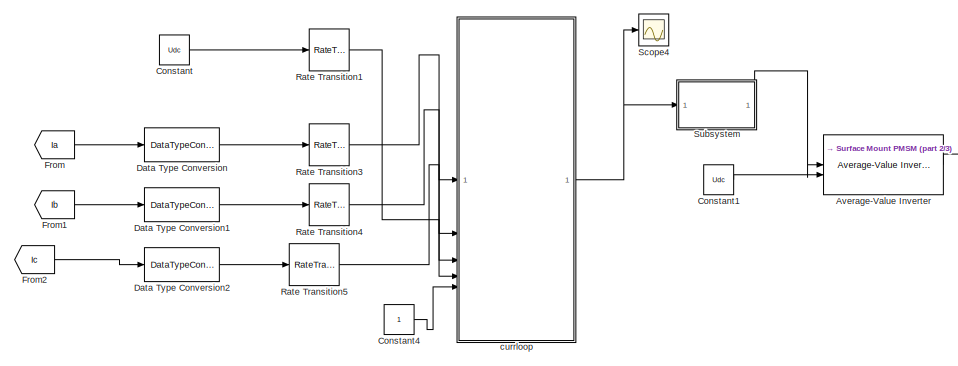
[diagram: root canvas - part 1/3, top left region]
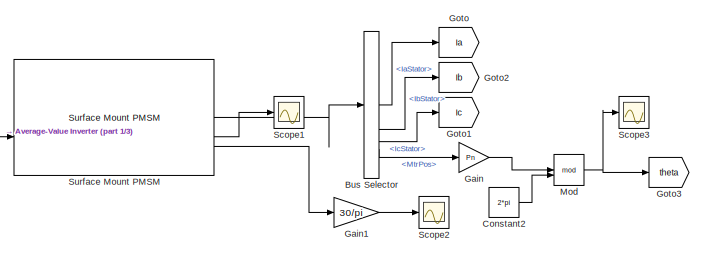
[diagram: root canvas - part 2/3, top right region]
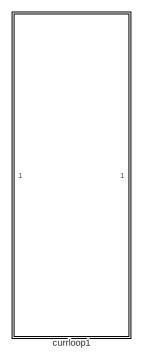
[diagram: root canvas - part 3/3, bottom center region]
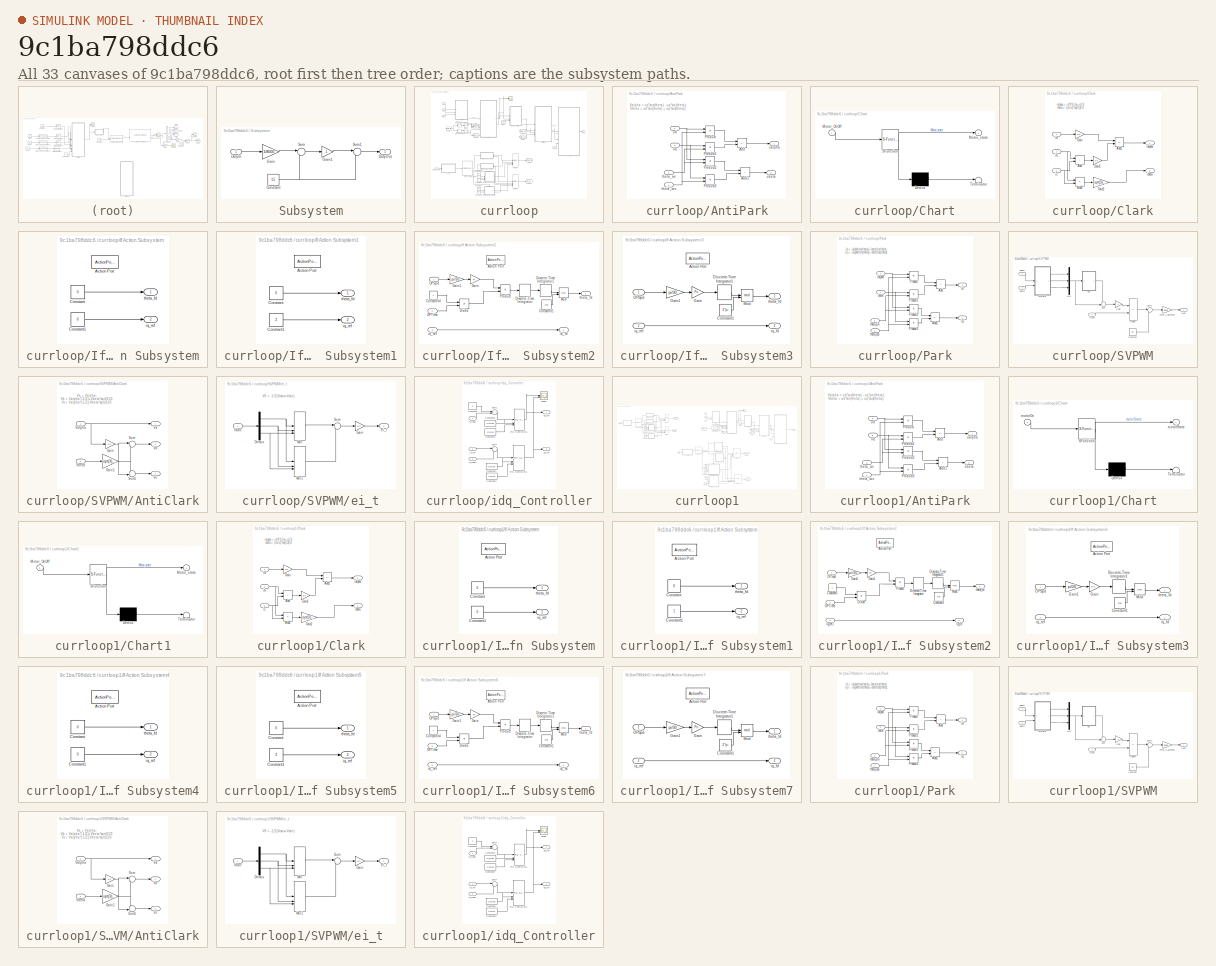
[diagram: thumbnail index - all 33 canvases of the model, root first then tree order]
MODEL slx_9c1ba798ddc6
KIND model
CONFIG AbsTol = auto
CONFIG EnableMultiTasking = off
CONFIG FixedStep = 1e-4
CONFIG MaxStep = auto
CONFIG MinStep = auto
CONFIG RelTol = 1e-3
CONFIG SampleTimeConstraint = Unconstrained
CONFIG SolverName = FixedStepAuto
CONFIG StartTime = 0.0
CONFIG StopTime = 10.0
BLOCK [Reference] Average-Value Inverter  REF=mcbplantlib/Average-Value Inverter
  LibrarySourceBlock = mcblib/Electrical Systems/Inverters/Average-Value Inverter
  SourceBlock = mcbplantlib/Average-Value Inverter
  SourceType = Average Value Inverter
BLOCK [BusSelector] Bus Selector
  OutputSignals = IaStator,IbStator,IcStator,MtrPos
BLOCK [Constant] Constant
  Value = Udc
BLOCK [Constant] Constant1
  Value = Udc
BLOCK [Constant] Constant2
  Value = 2*pi
BLOCK [Constant] Constant4
BLOCK [DataTypeConversion] Data Type Conversion
  OutDataTypeStr = single
  RndMeth = Floor
  SaturateOnIntegerOverflow = off
BLOCK [DataTypeConversion] Data Type Conversion1
  OutDataTypeStr = single
  RndMeth = Floor
  SaturateOnIntegerOverflow = off
BLOCK [DataTypeConversion] Data Type Conversion2
  OutDataTypeStr = single
  RndMeth = Floor
  SaturateOnIntegerOverflow = off
BLOCK [From] From
  GotoTag = Ia
BLOCK [From] From1
  GotoTag = Ib
BLOCK [From] From2
  GotoTag = Ic
BLOCK [Gain] Gain
  Gain = Pn
BLOCK [Gain] Gain1
  Gain = 30/pi
  OutDataTypeStr = single
BLOCK [Goto] Goto
  GotoTag = Ia
BLOCK [Goto] Goto1
  GotoTag = Ic
BLOCK [Goto] Goto2
  GotoTag = Ib
BLOCK [Goto] Goto3
  GotoTag = theta
BLOCK [Math] Mod
  Operator = mod
BLOCK [RateTransition] Rate Transition1
BLOCK [RateTransition] Rate Transition3
BLOCK [RateTransition] Rate Transition4
BLOCK [RateTransition] Rate Transition5
BLOCK [Scope] Scope1
  Floating = off
  NumInputPorts = 1
  ScopeSpecificationString = Simulink.scopes.TimeScopeBlockCfg('CurrentConfiguration', extmgr.ConfigurationSet(extmgr.Configuration('Core','General UI',true),extmgr.Configuration('Core','Source UI',true),extmgr.Configuration('Sources','WiredSimulink',true,'DataLoggingVariableName','ScopeData2'),extmgr.Configuration('Visuals','Time Domain',true,'SerializedDisplays',{struct('MinYLimReal','-4.25469','MaxYLimReal','5.71777','YLab...<+1528ch>
BLOCK [Scope] Scope2
  Floating = off
  NumInputPorts = 1
  ScopeSpecificationString = Simulink.scopes.TimeScopeBlockCfg('CurrentConfiguration', extmgr.ConfigurationSet(extmgr.Configuration('Core','General UI',true),extmgr.Configuration('Core','Source UI',true),extmgr.Configuration('Sources','WiredSimulink',true,'DataLoggingVariableName','ScopeData3'),extmgr.Configuration('Visuals','Time Domain',true,'SerializedDisplays',{struct('MinYLimReal','-216.11096','MaxYLimReal','1007.05358',...<+1438ch>
BLOCK [Scope] Scope3
  Floating = off
  NumInputPorts = 1
  ScopeSpecificationString = Simulink.scopes.TimeScopeBlockCfg('CurrentConfiguration', extmgr.ConfigurationSet(extmgr.Configuration('Core','General UI',true),extmgr.Configuration('Core','Source UI',true),extmgr.Configuration('Sources','WiredSimulink',true),extmgr.Configuration('Visuals','Time Domain',true,'SerializedDisplays',{struct('MinYLimReal','-34.3032','MaxYLimReal','40.01647','YLabelReal','','MinYLimMag','0.00000','Max...<+1373ch>
BLOCK [Scope] Scope4
  Floating = off
  NumInputPorts = 1
  ScopeSpecificationString = Simulink.scopes.TimeScopeBlockCfg('CurrentConfiguration', extmgr.ConfigurationSet(extmgr.Configuration('Core','General UI',true),extmgr.Configuration('Core','Source UI',true),extmgr.Configuration('Sources','WiredSimulink',true,'DataLoggingVariableName','ScopeData1'),extmgr.Configuration('Visuals','Time Domain',true,'SerializedDisplays',{struct('MinYLimReal','-2363.96118','MaxYLimReal','10363.96118...<+1520ch>
BLOCK [SubSystem] Subsystem
  PortSchema = {"entries":[{"content":{"sides":[{"content":{"connectorIds":["In1"]},"type":"ConnectorPlacement.EquallySpacedRectSide","uuid":"8ccc51de-fa2a-4900-80a3-4cdf9aa76f01"},{"content":{"side":"RIGHT"},"type":"ConnectorPlacement.EquallySpacedRectSide","uuid":"32c06e0d-3f1d-4948-af96-e310e54308a0"},{"content":{"connectorIds":["Out1"],"side":"TOP"},"type":"ConnectorPlacement.EquallySpacedRectSide","uuid":"a...<+222ch>
BLOCK [Constant] Subsystem/Constant
  SampleTime = -1
  Value = 0.5
BLOCK [Inport] Subsystem/DutyIn
BLOCK [Outport] Subsystem/DutyOut
BLOCK [Gain] Subsystem/Gain
  Gain = 1/8000
  ParamDataTypeStr = single
BLOCK [Gain] Subsystem/Gain1
  Gain = -1
BLOCK [Sum] Subsystem/Sum
  Inputs = |+-
BLOCK [Sum] Subsystem/Sum1
  Inputs = |++
BLOCK [Reference] Surface Mount PMSM  REF=autolibpmsmexterior/Surface Mount PMSM
  LibrarySourceBlock = autolibemachines/Surface Mount PMSM
  SourceBlock = autolibpmsmexterior/Surface Mount PMSM
  SourceType = Surface Mount PMSM
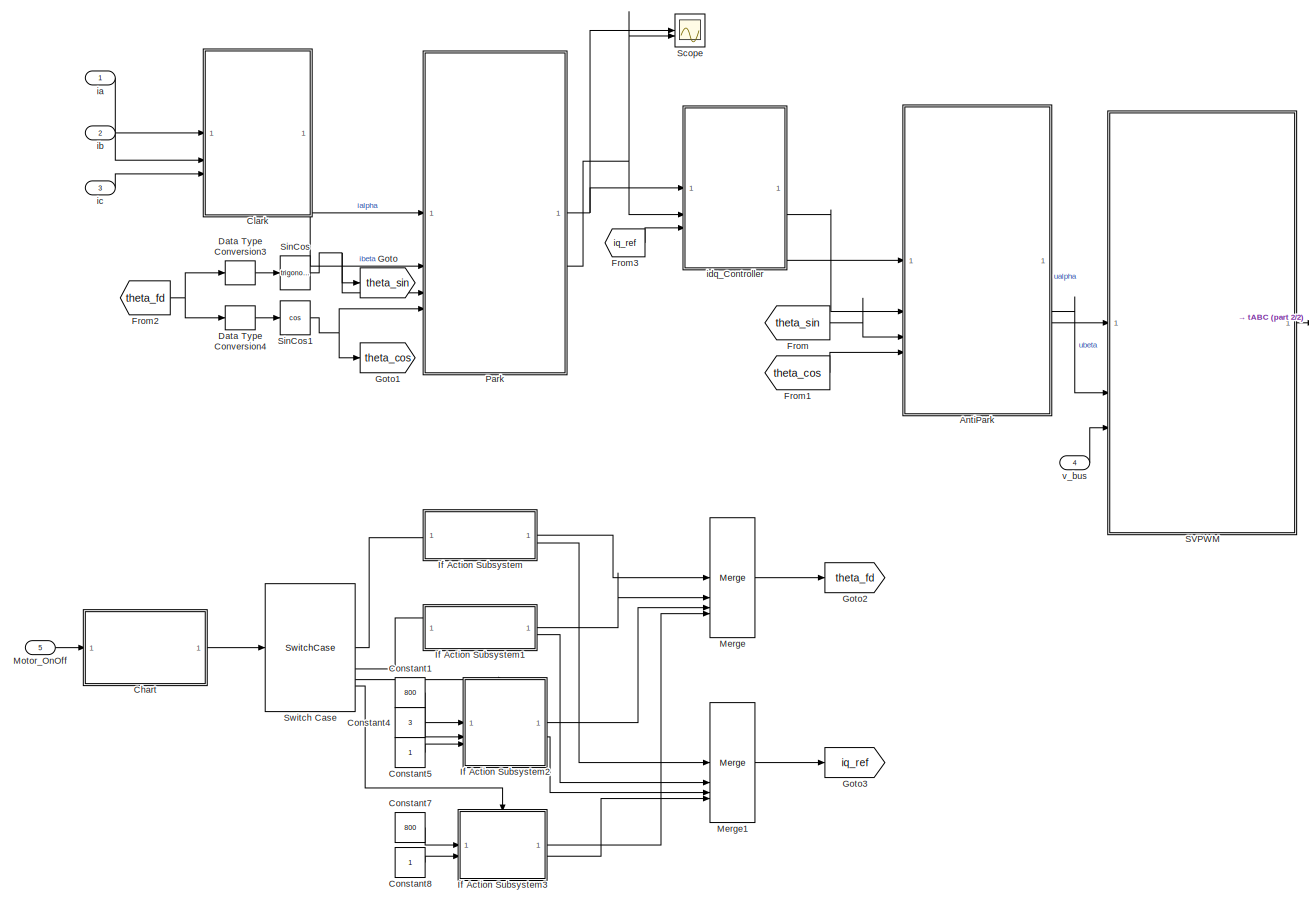
[diagram: currloop - part 1/2, most of the canvas]
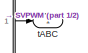
[diagram: currloop - part 2/2, middle right region]
BLOCK [SubSystem] currloop
BLOCK [SubSystem] currloop/AntiPark
BLOCK [Sum] currloop/AntiPark/Add
  IconShape = rectangular
  Inputs = +-
BLOCK [Sum] currloop/AntiPark/Add1
  IconShape = rectangular
BLOCK [Product] currloop/AntiPark/Product
BLOCK [Product] currloop/AntiPark/Product1
BLOCK [Product] currloop/AntiPark/Product2
BLOCK [Product] currloop/AntiPark/Product3
BLOCK [Inport] currloop/AntiPark/theta_cos
  Port = 4
BLOCK [Inport] currloop/AntiPark/theta_sin
  Port = 3
BLOCK [Outport] currloop/AntiPark/ualpha
  OutDataTypeStr = single
BLOCK [Outport] currloop/AntiPark/ubeta
  OutDataTypeStr = single
  Port = 2
BLOCK [Inport] currloop/AntiPark/ud
BLOCK [Inport] currloop/AntiPark/uq
  Port = 2
BLOCK [SubSystem] currloop/Chart
  ErrorFcn = Stateflow.Translate.translate
  PermitHierarchicalResolution = ExplicitOnly
  SFBlockType = Chart
  TreatAsAtomicUnit = on
BLOCK [Demux] currloop/Chart/ Demux 
  Outputs = 1
BLOCK [S-Function] currloop/Chart/ SFunction 
  EnableBusSupport = on
  FunctionName = sf_sfun
  PortCounts = [1 2]
  SFcnIsStateOwnerBlock = off
  SFunctionDeploymentMode = off
  Tag = Stateflow S-Function 3
BLOCK [Terminator] currloop/Chart/ Terminator 
BLOCK [Inport] currloop/Chart/Motor_OnOff
BLOCK [Outport] currloop/Chart/Motor_state
BLOCK [SubSystem] currloop/Clark
BLOCK [Sum] currloop/Clark/Add
  AccumDataTypeStr = single
  IconShape = rectangular
  OutDataTypeStr = single
BLOCK [Sum] currloop/Clark/Add1
  AccumDataTypeStr = single
  IconShape = rectangular
  Inputs = +-
  OutDataTypeStr = single
BLOCK [Sum] currloop/Clark/Add2
  AccumDataTypeStr = single
  IconShape = rectangular
  Inputs = +-
  OutDataTypeStr = single
BLOCK [Gain] currloop/Clark/Gain
  Gain = 2/3
  ParamDataTypeStr = single
BLOCK [Gain] currloop/Clark/Gain1
  Gain = 1/3
  ParamDataTypeStr = single
BLOCK [Gain] currloop/Clark/Gain2
  Gain = sqrt(3)/3
  ParamDataTypeStr = single
BLOCK [Inport] currloop/Clark/ia
  OutDataTypeStr = single
BLOCK [Outport] currloop/Clark/ialpha
  OutDataTypeStr = single
BLOCK [Inport] currloop/Clark/ib
  OutDataTypeStr = single
  Port = 2
BLOCK [Outport] currloop/Clark/ibeta
  OutDataTypeStr = single
  Port = 2
BLOCK [Inport] currloop/Clark/ic
  OutDataTypeStr = single
  Port = 3
BLOCK [Constant] currloop/Constant1
  OutDataTypeStr = single
  Value = 800
BLOCK [Constant] currloop/Constant4
  OutDataTypeStr = single
  Value = 3
BLOCK [Constant] currloop/Constant5
  OutDataTypeStr = single
BLOCK [Constant] currloop/Constant7
  OutDataTypeStr = single
  Value = 800
BLOCK [Constant] currloop/Constant8
  OutDataTypeStr = single
BLOCK [DataTypeConversion] currloop/Data Type Conversion3
  OutDataTypeStr = single
  RndMeth = Floor
  SaturateOnIntegerOverflow = off
BLOCK [DataTypeConversion] currloop/Data Type Conversion4
  OutDataTypeStr = single
  RndMeth = Floor
  SaturateOnIntegerOverflow = off
BLOCK [From] currloop/From
  GotoTag = theta_sin
BLOCK [From] currloop/From1
  GotoTag = theta_cos
BLOCK [From] currloop/From2
  GotoTag = theta_fd
BLOCK [From] currloop/From3
  GotoTag = iq_ref
BLOCK [Goto] currloop/Goto
  GotoTag = theta_sin
BLOCK [Goto] currloop/Goto1
  GotoTag = theta_cos
BLOCK [Goto] currloop/Goto2
  GotoTag = theta_fd
BLOCK [Goto] currloop/Goto3
  GotoTag = iq_ref
BLOCK [SubSystem] currloop/If Action Subsystem
  TreatAsAtomicUnit = on
BLOCK [ActionPort] currloop/If Action Subsystem/Action Port
  ActionPortLabel = case [ 1 ]:
BLOCK [Constant] currloop/If Action Subsystem/Constant
  OutDataTypeStr = single
  Value = 0
BLOCK [Constant] currloop/If Action Subsystem/Constant1
  OutDataTypeStr = single
  Value = 0
BLOCK [Outport] currloop/If Action Subsystem/iq_ref
  Port = 2
BLOCK [Outport] currloop/If Action Subsystem/theta_fd
BLOCK [SubSystem] currloop/If Action Subsystem1
  TreatAsAtomicUnit = on
BLOCK [ActionPort] currloop/If Action Subsystem1/Action Port
  ActionPortLabel = case [ 2 ]:
BLOCK [Constant] currloop/If Action Subsystem1/Constant
  OutDataTypeStr = single
  Value = 0
BLOCK [Constant] currloop/If Action Subsystem1/Constant1
  OutDataTypeStr = single
  Value = 2
BLOCK [Outport] currloop/If Action Subsystem1/iq_ref
  Port = 2
BLOCK [Outport] currloop/If Action Subsystem1/theta_fd
BLOCK [SubSystem] currloop/If Action Subsystem2
  TreatAsAtomicUnit = on
BLOCK [ActionPort] currloop/If Action Subsystem2/Action Port
  ActionPortLabel = case [ 3 ]:
BLOCK [Constant] currloop/If Action Subsystem2/Constant1
  OutDataTypeStr = single
  Value = 2*pi
BLOCK [Constant] currloop/If Action Subsystem2/Constant4
  OutDataTypeStr = single
BLOCK [DiscreteIntegrator] currloop/If Action Subsystem2/Discrete-Time Integrator
  ICPrevOutput = DiscIntNeverNeededParam
  ICPrevScaledInput = DiscIntNeverNeededParam
  InitialConditionSetting = Auto
  SampleTime = -1
BLOCK [DiscreteIntegrator] currloop/If Action Subsystem2/Discrete-Time Integrator1
  ICPrevOutput = DiscIntNeverNeededParam
  ICPrevScaledInput = DiscIntNeverNeededParam
  InitialConditionSetting = Auto
  SampleTime = -1
BLOCK [Product] currloop/If Action Subsystem2/Divide
  Inputs = */
  OutDataTypeStr = single
BLOCK [Gain] currloop/If Action Subsystem2/Gain
  Gain = Pn
BLOCK [Gain] currloop/If Action Subsystem2/Gain1
  Gain = pi/30
  OutDataTypeStr = single
BLOCK [Math] currloop/If Action Subsystem2/Mod
  Operator = mod
BLOCK [Inport] currloop/If Action Subsystem2/OPSpd
  OutDataTypeStr = single
  PortDimensions = 1
  SignalType = real
  VarSizeSig = No
BLOCK [Inport] currloop/If Action Subsystem2/OPTime
  OutDataTypeStr = single
  Port = 2
  PortDimensions = 1
  SignalType = real
  VarSizeSig = No
BLOCK [Product] currloop/If Action Subsystem2/Product
  OutDataTypeStr = single
BLOCK [Outport] currloop/If Action Subsystem2/iq_fd
  Port = 2
BLOCK [Inport] currloop/If Action Subsystem2/iq_ref
  Port = 3
BLOCK [Outport] currloop/If Action Subsystem2/theta_fd
BLOCK [SubSystem] currloop/If Action Subsystem3
  TreatAsAtomicUnit = on
BLOCK [ActionPort] currloop/If Action Subsystem3/Action Port
  ActionPortLabel = case [ 4 ]:
BLOCK [Constant] currloop/If Action Subsystem3/Constant1
  OutDataTypeStr = single
  Value = 2*pi
BLOCK [DiscreteIntegrator] currloop/If Action Subsystem3/Discrete-Time Integrator1
  ICPrevOutput = DiscIntNeverNeededParam
  ICPrevScaledInput = DiscIntNeverNeededParam
  InitialConditionSetting = Auto
  SampleTime = -1
BLOCK [Gain] currloop/If Action Subsystem3/Gain
  Gain = Pn
BLOCK [Gain] currloop/If Action Subsystem3/Gain1
  Gain = pi/30
  OutDataTypeStr = single
BLOCK [Math] currloop/If Action Subsystem3/Mod
  Operator = mod
BLOCK [Inport] currloop/If Action Subsystem3/OPSpd
  OutDataTypeStr = single
  PortDimensions = 1
  SignalType = real
  VarSizeSig = No
BLOCK [Outport] currloop/If Action Subsystem3/iq_fd
  Port = 2
BLOCK [Inport] currloop/If Action Subsystem3/iq_ref
  Port = 2
BLOCK [Outport] currloop/If Action Subsystem3/theta_fd
BLOCK [Merge] currloop/Merge
  Inputs = 4
BLOCK [Merge] currloop/Merge1
  Inputs = 4
BLOCK [Inport] currloop/Motor_OnOff
  Port = 5
BLOCK [SubSystem] currloop/Park
BLOCK [Sum] currloop/Park/Add
  AccumDataTypeStr = single
  IconShape = rectangular
  OutDataTypeStr = single
BLOCK [Sum] currloop/Park/Add1
  AccumDataTypeStr = single
  IconShape = rectangular
  Inputs = -+
  OutDataTypeStr = single
BLOCK [Product] currloop/Park/Product
  OutDataTypeStr = single
BLOCK [Product] currloop/Park/Product1
  OutDataTypeStr = single
BLOCK [Product] currloop/Park/Product2
  OutDataTypeStr = single
BLOCK [Product] currloop/Park/Product3
  OutDataTypeStr = single
BLOCK [Inport] currloop/Park/ialpha
  OutDataTypeStr = single
BLOCK [Inport] currloop/Park/ibeta
  OutDataTypeStr = single
  Port = 2
BLOCK [Outport] currloop/Park/id
  OutDataTypeStr = single
BLOCK [Outport] currloop/Park/iq
  OutDataTypeStr = single
  Port = 2
BLOCK [Inport] currloop/Park/theta_cos
  OutDataTypeStr = single
  Port = 4
BLOCK [Inport] currloop/Park/theta_sin
  OutDataTypeStr = single
  Port = 3
BLOCK [SubSystem] currloop/SVPWM
  RTWSystemCode = Reusable function
  TreatAsAtomicUnit = on
BLOCK [SubSystem] currloop/SVPWM/AntiClark
BLOCK [Gain] currloop/SVPWM/AntiClark/Gain
  Gain = -1/2
  OutDataTypeStr = single
BLOCK [Gain] currloop/SVPWM/AntiClark/Gain1
  Gain = sqrt(3)/2
  OutDataTypeStr = single
BLOCK [Sum] currloop/SVPWM/AntiClark/Sum
  Inputs = |++
  OutDataTypeStr = single
BLOCK [Sum] currloop/SVPWM/AntiClark/Sum1
  Inputs = -+|
  OutDataTypeStr = single
BLOCK [Outport] currloop/SVPWM/AntiClark/Va
  OutDataTypeStr = single
BLOCK [Inport] currloop/SVPWM/AntiClark/Valpha
  OutDataTypeStr = single
BLOCK [Outport] currloop/SVPWM/AntiClark/Vb
  OutDataTypeStr = single
  Port = 2
BLOCK [Inport] currloop/SVPWM/AntiClark/Vbeta
  OutDataTypeStr = single
  Port = 2
BLOCK [Outport] currloop/SVPWM/AntiClark/Vc
  OutDataTypeStr = single
  Port = 3
BLOCK [Constant] currloop/SVPWM/Constant
  OutDataTypeStr = single
  Value = 0.5
BLOCK [Product] currloop/SVPWM/Divide
  Inputs = */
  OutDataTypeStr = single
BLOCK [Gain] currloop/SVPWM/Gain
  Gain = -1
  OutDataTypeStr = single
BLOCK [Mux] currloop/SVPWM/Mux
  DisplayOption = bar
  Inputs = 3
BLOCK [Gain] currloop/SVPWM/PWM_HalfPeriod
  Gain = 8000
  OutDataTypeStr = single
BLOCK [Sum] currloop/SVPWM/Sum
  Inputs = ++|
  OutDataTypeStr = single
BLOCK [Sum] currloop/SVPWM/Sum1
  Inputs = |++
  OutDataTypeStr = single
BLOCK [Inport] currloop/SVPWM/Valpha
  OutDataTypeStr = single
BLOCK [Inport] currloop/SVPWM/Vbeta
  OutDataTypeStr = single
  Port = 2
BLOCK [SubSystem] currloop/SVPWM/ei_t
BLOCK [Demux] currloop/SVPWM/ei_t/Demux
  Outputs = 3
BLOCK [Gain] currloop/SVPWM/ei_t/Gain
  Gain = -1/2
  OutDataTypeStr = single
BLOCK [MinMax] currloop/SVPWM/ei_t/Min
  Inputs = 3
  OutDataTypeStr = single
BLOCK [MinMax] currloop/SVPWM/ei_t/Min1
  Function = max
  Inputs = 3
  OutDataTypeStr = single
BLOCK [Sum] currloop/SVPWM/ei_t/Sum
  Inputs = |++
  OutDataTypeStr = single
BLOCK [Inport] currloop/SVPWM/ei_t/Vabc
  OutDataTypeStr = single
BLOCK [Outport] currloop/SVPWM/ei_t/ei_t
  OutDataTypeStr = single
BLOCK [Outport] currloop/SVPWM/tABC
  OutDataTypeStr = single
BLOCK [Inport] currloop/SVPWM/v_bus
  OutDataTypeStr = single
  Port = 3
BLOCK [Scope] currloop/Scope
  Floating = off
  NumInputPorts = 2
  ScopeSpecificationString = Simulink.scopes.TimeScopeBlockCfg('CurrentConfiguration', extmgr.ConfigurationSet(extmgr.Configuration('Core','General UI',true),extmgr.Configuration('Core','Source UI',true),extmgr.Configuration('Sources','WiredSimulink',true,'DataLoggingVariableName','ScopeData1'),extmgr.Configuration('Visuals','Time Domain',true,'SerializedDisplays',{struct('MinYLimReal','-1.52617','MaxYLimReal','2.37444','YLab...<+1399ch>
BLOCK [Trigonometry] currloop/SinCos
BLOCK [Trigonometry] currloop/SinCos1
  Operator = cos
BLOCK [SwitchCase] currloop/Switch Case
  CaseConditions = {1,2,3,4}
  ShowDefaultCase = off
BLOCK [Inport] currloop/ia
BLOCK [Inport] currloop/ib
  Port = 2
BLOCK [Inport] currloop/ic
  Port = 3
BLOCK [SubSystem] currloop/idq_Controller
BLOCK [Constant] currloop/idq_Controller/Constant
  OutDataTypeStr = single
  Value = 0
BLOCK [Constant] currloop/idq_Controller/Constant1
  OutDataTypeStr = single
  Value = CurrKp
BLOCK [Constant] currloop/idq_Controller/Constant2
  OutDataTypeStr = single
  Value = CurrKi
BLOCK [Constant] currloop/idq_Controller/Constant3
  OutDataTypeStr = single
  Value = CurrKp
BLOCK [Constant] currloop/idq_Controller/Constant4
  OutDataTypeStr = single
  Value = CurrKi
BLOCK [Reference] currloop/idq_Controller/PID Controller1  REF=slpidlib/PID Controller
  SourceBlock = slpidlib/PID Controller
  SourceType = PID 1dof
BLOCK [Reference] currloop/idq_Controller/PID Controller2  REF=slpidlib/PID Controller
  SourceBlock = slpidlib/PID Controller
  SourceType = PID 1dof
BLOCK [Scope] currloop/idq_Controller/Scope
  Floating = off
  NumInputPorts = 2
  ScopeSpecificationString = Simulink.scopes.TimeScopeBlockCfg('CurrentConfiguration', extmgr.ConfigurationSet(extmgr.Configuration('Core','General UI',true),extmgr.Configuration('Core','Source UI',true),extmgr.Configuration('Sources','WiredSimulink',true,'DataLoggingVariableName','ScopeData2'),extmgr.Configuration('Visuals','Time Domain',true,'SerializedDisplays',{struct('MinYLimReal','-5.23788','MaxYLimReal','14.43839','YLa...<+1450ch>
BLOCK [Sum] currloop/idq_Controller/Sum1
  AccumDataTypeStr = single
  Inputs = |+-
  OutDataTypeStr = single
BLOCK [Sum] currloop/idq_Controller/Sum7
  AccumDataTypeStr = single
  Inputs = |+-
  OutDataTypeStr = single
BLOCK [Inport] currloop/idq_Controller/id_fdbk
  OutDataTypeStr = single
BLOCK [Inport] currloop/idq_Controller/iq_fdbk
  OutDataTypeStr = single
  Port = 2
BLOCK [Inport] currloop/idq_Controller/iq_ref
  OutDataTypeStr = single
  Port = 3
BLOCK [Outport] currloop/idq_Controller/ud_ref
  OutDataTypeStr = single
BLOCK [Outport] currloop/idq_Controller/uq_ref
  OutDataTypeStr = single
  Port = 2
BLOCK [Outport] currloop/tABC
BLOCK [Inport] currloop/v_bus
  Port = 4
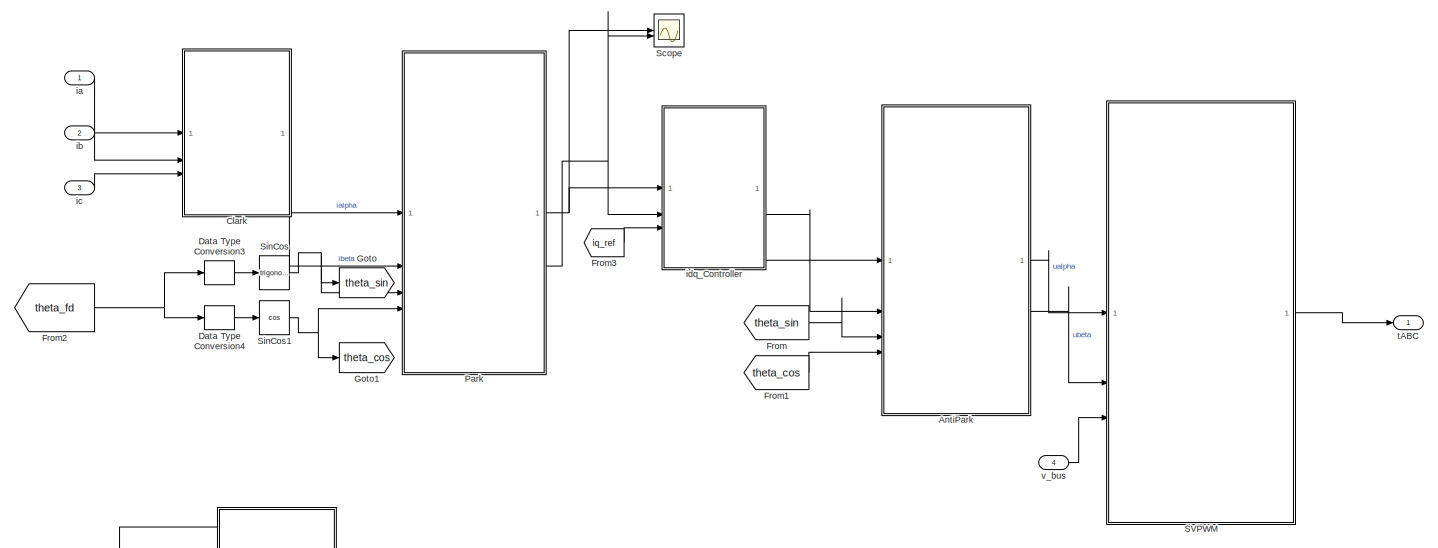
[diagram: currloop1 - part 1/3, top right region]
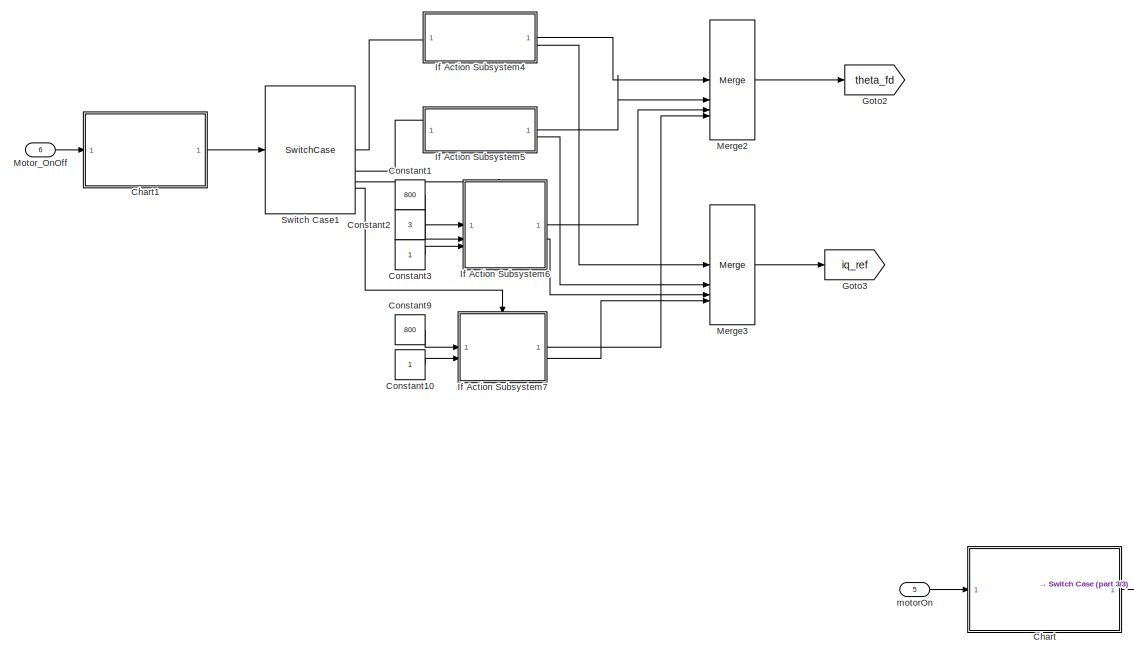
[diagram: currloop1 - part 2/3, middle left region]
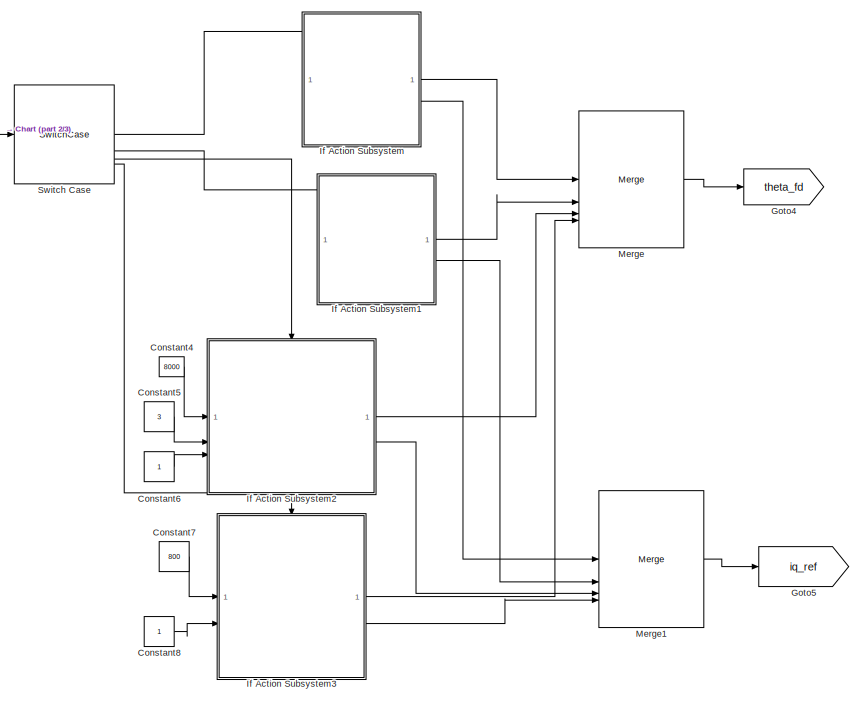
[diagram: currloop1 - part 3/3, bottom center region]
BLOCK [SubSystem] currloop1
BLOCK [SubSystem] currloop1/AntiPark
BLOCK [Sum] currloop1/AntiPark/Add
  IconShape = rectangular
  Inputs = +-
BLOCK [Sum] currloop1/AntiPark/Add1
  IconShape = rectangular
BLOCK [Product] currloop1/AntiPark/Product
BLOCK [Product] currloop1/AntiPark/Product1
BLOCK [Product] currloop1/AntiPark/Product2
BLOCK [Product] currloop1/AntiPark/Product3
BLOCK [Inport] currloop1/AntiPark/theta_cos
  Port = 4
BLOCK [Inport] currloop1/AntiPark/theta_sin
  Port = 3
BLOCK [Outport] currloop1/AntiPark/ualpha
  OutDataTypeStr = single
BLOCK [Outport] currloop1/AntiPark/ubeta
  OutDataTypeStr = single
  Port = 2
BLOCK [Inport] currloop1/AntiPark/ud
BLOCK [Inport] currloop1/AntiPark/uq
  Port = 2
BLOCK [SubSystem] currloop1/Chart
  Commented = on
  ErrorFcn = Stateflow.Translate.translate
  PermitHierarchicalResolution = ExplicitOnly
  SFBlockType = Chart
  TreatAsAtomicUnit = on
BLOCK [Demux] currloop1/Chart/ Demux 
  Outputs = 1
BLOCK [S-Function] currloop1/Chart/ SFunction 
  EnableBusSupport = on
  FunctionName = sf_sfun
  PortCounts = [1 2]
  SFcnIsStateOwnerBlock = off
  SFunctionDeploymentMode = off
  Tag = Stateflow S-Function 2
BLOCK [Terminator] currloop1/Chart/ Terminator 
BLOCK [Inport] currloop1/Chart/motorOn
BLOCK [Outport] currloop1/Chart/motorState
BLOCK [SubSystem] currloop1/Chart1
  ErrorFcn = Stateflow.Translate.translate
  PermitHierarchicalResolution = ExplicitOnly
  SFBlockType = Chart
  TreatAsAtomicUnit = on
BLOCK [Demux] currloop1/Chart1/ Demux 
  Outputs = 1
BLOCK [S-Function] currloop1/Chart1/ SFunction 
  EnableBusSupport = on
  FunctionName = sf_sfun
  PortCounts = [1 2]
  SFcnIsStateOwnerBlock = off
  SFunctionDeploymentMode = off
  Tag = Stateflow S-Function 4
BLOCK [Terminator] currloop1/Chart1/ Terminator 
BLOCK [Inport] currloop1/Chart1/Motor_OnOff
BLOCK [Outport] currloop1/Chart1/Motor_state
BLOCK [SubSystem] currloop1/Clark
BLOCK [Sum] currloop1/Clark/Add
  AccumDataTypeStr = single
  IconShape = rectangular
  OutDataTypeStr = single
BLOCK [Sum] currloop1/Clark/Add1
  AccumDataTypeStr = single
  IconShape = rectangular
  Inputs = +-
  OutDataTypeStr = single
BLOCK [Sum] currloop1/Clark/Add2
  AccumDataTypeStr = single
  IconShape = rectangular
  Inputs = +-
  OutDataTypeStr = single
BLOCK [Gain] currloop1/Clark/Gain
  Gain = 2/3
  ParamDataTypeStr = single
BLOCK [Gain] currloop1/Clark/Gain1
  Gain = 1/3
  ParamDataTypeStr = single
BLOCK [Gain] currloop1/Clark/Gain2
  Gain = sqrt(3)/3
  ParamDataTypeStr = single
BLOCK [Inport] currloop1/Clark/ia
  OutDataTypeStr = single
BLOCK [Outport] currloop1/Clark/ialpha
  OutDataTypeStr = single
BLOCK [Inport] currloop1/Clark/ib
  OutDataTypeStr = single
  Port = 2
BLOCK [Outport] currloop1/Clark/ibeta
  OutDataTypeStr = single
  Port = 2
BLOCK [Inport] currloop1/Clark/ic
  OutDataTypeStr = single
  Port = 3
BLOCK [Constant] currloop1/Constant1
  OutDataTypeStr = single
  Value = 800
BLOCK [Constant] currloop1/Constant10
  OutDataTypeStr = single
BLOCK [Constant] currloop1/Constant2
  OutDataTypeStr = single
  Value = 3
BLOCK [Constant] currloop1/Constant3
  OutDataTypeStr = single
BLOCK [Constant] currloop1/Constant4
  Commented = on
  OutDataTypeStr = single
  Value = 8000
BLOCK [Constant] currloop1/Constant5
  Commented = on
  OutDataTypeStr = single
  Value = 3
BLOCK [Constant] currloop1/Constant6
  Commented = on
  OutDataTypeStr = single
BLOCK [Constant] currloop1/Constant7
  Commented = on
  OutDataTypeStr = single
  Value = 800
BLOCK [Constant] currloop1/Constant8
  Commented = on
  OutDataTypeStr = single
BLOCK [Constant] currloop1/Constant9
  OutDataTypeStr = single
  Value = 800
BLOCK [DataTypeConversion] currloop1/Data Type Conversion3
  OutDataTypeStr = single
  RndMeth = Floor
  SaturateOnIntegerOverflow = off
BLOCK [DataTypeConversion] currloop1/Data Type Conversion4
  OutDataTypeStr = single
  RndMeth = Floor
  SaturateOnIntegerOverflow = off
BLOCK [From] currloop1/From
  GotoTag = theta_sin
BLOCK [From] currloop1/From1
  GotoTag = theta_cos
BLOCK [From] currloop1/From2
  GotoTag = theta_fd
BLOCK [From] currloop1/From3
  GotoTag = iq_ref
BLOCK [Goto] currloop1/Goto
  GotoTag = theta_sin
BLOCK [Goto] currloop1/Goto1
  GotoTag = theta_cos
BLOCK [Goto] currloop1/Goto2
  GotoTag = theta_fd
BLOCK [Goto] currloop1/Goto3
  GotoTag = iq_ref
BLOCK [Goto] currloop1/Goto4
  Commented = on
  GotoTag = theta_fd
BLOCK [Goto] currloop1/Goto5
  Commented = on
  GotoTag = iq_ref
BLOCK [SubSystem] currloop1/If Action Subsystem
  Commented = on
  TreatAsAtomicUnit = on
BLOCK [ActionPort] currloop1/If Action Subsystem/Action Port
BLOCK [Constant] currloop1/If Action Subsystem/Constant
  OutDataTypeStr = single
  Value = 0
BLOCK [Constant] currloop1/If Action Subsystem/Constant1
  OutDataTypeStr = single
  Value = 0
BLOCK [Outport] currloop1/If Action Subsystem/iq_ref
  Port = 2
BLOCK [Outport] currloop1/If Action Subsystem/theta_fd
BLOCK [SubSystem] currloop1/If Action Subsystem1
  Commented = on
  TreatAsAtomicUnit = on
BLOCK [ActionPort] currloop1/If Action Subsystem1/Action Port
BLOCK [Constant] currloop1/If Action Subsystem1/Constant
  OutDataTypeStr = single
  Value = 0
BLOCK [Constant] currloop1/If Action Subsystem1/Constant1
  OutDataTypeStr = single
BLOCK [Outport] currloop1/If Action Subsystem1/iq_ref
  Port = 2
BLOCK [Outport] currloop1/If Action Subsystem1/theta_fd
BLOCK [SubSystem] currloop1/If Action Subsystem2
  Commented = on
  TreatAsAtomicUnit = on
BLOCK [ActionPort] currloop1/If Action Subsystem2/Action Port
BLOCK [Constant] currloop1/If Action Subsystem2/Constant4
  OutDataTypeStr = single
  Value = 2*pi
BLOCK [Constant] currloop1/If Action Subsystem2/Constant5
  OutDataTypeStr = single
BLOCK [DiscreteIntegrator] currloop1/If Action Subsystem2/Discrete-Time Integrator
  ICPrevOutput = DiscIntNeverNeededParam
  ICPrevScaledInput = DiscIntNeverNeededParam
  InitialConditionSetting = Auto
  SampleTime = -1
BLOCK [DiscreteIntegrator] currloop1/If Action Subsystem2/Discrete-Time Integrator1
  ICPrevOutput = DiscIntNeverNeededParam
  ICPrevScaledInput = DiscIntNeverNeededParam
  InitialConditionSetting = Auto
  SampleTime = -1
BLOCK [Product] currloop1/If Action Subsystem2/Divide
  Inputs = */
  OutDataTypeStr = single
BLOCK [Gain] currloop1/If Action Subsystem2/Gain1
  Gain = Pn
BLOCK [Gain] currloop1/If Action Subsystem2/Gain2
  Gain = pi/30
  OutDataTypeStr = single
BLOCK [Math] currloop1/If Action Subsystem2/Mod1
  Operator = mod
BLOCK [Inport] currloop1/If Action Subsystem2/OPSpd
  OutDataTypeStr = single
  PortDimensions = 1
  SignalType = real
  VarSizeSig = No
BLOCK [Inport] currloop1/If Action Subsystem2/OPTime
  OutDataTypeStr = single
  Port = 2
  PortDimensions = 1
  SignalType = real
  VarSizeSig = No
BLOCK [Product] currloop1/If Action Subsystem2/Product
  OutDataTypeStr = single
BLOCK [Outport] currloop1/If Action Subsystem2/iq_fd
  Port = 2
BLOCK [Inport] currloop1/If Action Subsystem2/iq_ref1
  Port = 3
BLOCK [Outport] currloop1/If Action Subsystem2/theta_fd
BLOCK [SubSystem] currloop1/If Action Subsystem3
  Commented = on
  TreatAsAtomicUnit = on
BLOCK [ActionPort] currloop1/If Action Subsystem3/Action Port
BLOCK [Constant] currloop1/If Action Subsystem3/Constant1
  OutDataTypeStr = single
  Value = 2*pi
BLOCK [DiscreteIntegrator] currloop1/If Action Subsystem3/Discrete-Time Integrator1
  ICPrevOutput = DiscIntNeverNeededParam
  ICPrevScaledInput = DiscIntNeverNeededParam
  InitialConditionSetting = Auto
  SampleTime = -1
BLOCK [Gain] currloop1/If Action Subsystem3/Gain
  Gain = Pn
BLOCK [Gain] currloop1/If Action Subsystem3/Gain1
  Gain = pi/30
  OutDataTypeStr = single
BLOCK [Math] currloop1/If Action Subsystem3/Mod
  Operator = mod
BLOCK [Inport] currloop1/If Action Subsystem3/OPSpd
  OutDataTypeStr = single
  PortDimensions = 1
  SignalType = real
  VarSizeSig = No
BLOCK [Outport] currloop1/If Action Subsystem3/iq_fd
  Port = 2
BLOCK [Inport] currloop1/If Action Subsystem3/iq_ref
  Port = 2
BLOCK [Outport] currloop1/If Action Subsystem3/theta_fd
BLOCK [SubSystem] currloop1/If Action Subsystem4
  TreatAsAtomicUnit = on
BLOCK [ActionPort] currloop1/If Action Subsystem4/Action Port
  ActionPortLabel = case [ 1 ]:
BLOCK [Constant] currloop1/If Action Subsystem4/Constant
  OutDataTypeStr = single
  Value = 0
BLOCK [Constant] currloop1/If Action Subsystem4/Constant1
  OutDataTypeStr = single
  Value = 0
BLOCK [Outport] currloop1/If Action Subsystem4/iq_ref
  Port = 2
BLOCK [Outport] currloop1/If Action Subsystem4/theta_fd
BLOCK [SubSystem] currloop1/If Action Subsystem5
  TreatAsAtomicUnit = on
BLOCK [ActionPort] currloop1/If Action Subsystem5/Action Port
  ActionPortLabel = case [ 2 ]:
BLOCK [Constant] currloop1/If Action Subsystem5/Constant
  OutDataTypeStr = single
  Value = 0
BLOCK [Constant] currloop1/If Action Subsystem5/Constant1
  OutDataTypeStr = single
  Value = 2
BLOCK [Outport] currloop1/If Action Subsystem5/iq_ref
  Port = 2
BLOCK [Outport] currloop1/If Action Subsystem5/theta_fd
BLOCK [SubSystem] currloop1/If Action Subsystem6
  TreatAsAtomicUnit = on
BLOCK [ActionPort] currloop1/If Action Subsystem6/Action Port
  ActionPortLabel = case [ 3 ]:
BLOCK [Constant] currloop1/If Action Subsystem6/Constant1
  OutDataTypeStr = single
  Value = 2*pi
BLOCK [Constant] currloop1/If Action Subsystem6/Constant4
  OutDataTypeStr = single
BLOCK [DiscreteIntegrator] currloop1/If Action Subsystem6/Discrete-Time Integrator
  ICPrevOutput = DiscIntNeverNeededParam
  ICPrevScaledInput = DiscIntNeverNeededParam
  InitialConditionSetting = Auto
  SampleTime = -1
BLOCK [DiscreteIntegrator] currloop1/If Action Subsystem6/Discrete-Time Integrator1
  ICPrevOutput = DiscIntNeverNeededParam
  ICPrevScaledInput = DiscIntNeverNeededParam
  InitialConditionSetting = Auto
  SampleTime = -1
BLOCK [Product] currloop1/If Action Subsystem6/Divide
  Inputs = */
  OutDataTypeStr = single
BLOCK [Gain] currloop1/If Action Subsystem6/Gain
  Gain = Pn
BLOCK [Gain] currloop1/If Action Subsystem6/Gain1
  Gain = pi/30
  OutDataTypeStr = single
BLOCK [Math] currloop1/If Action Subsystem6/Mod
  Operator = mod
BLOCK [Inport] currloop1/If Action Subsystem6/OPSpd
  OutDataTypeStr = single
  PortDimensions = 1
  SignalType = real
  VarSizeSig = No
BLOCK [Inport] currloop1/If Action Subsystem6/OPTime
  OutDataTypeStr = single
  Port = 2
  PortDimensions = 1
  SignalType = real
  VarSizeSig = No
BLOCK [Product] currloop1/If Action Subsystem6/Product
  OutDataTypeStr = single
BLOCK [Outport] currloop1/If Action Subsystem6/iq_fd
  Port = 2
BLOCK [Inport] currloop1/If Action Subsystem6/iq_ref
  Port = 3
BLOCK [Outport] currloop1/If Action Subsystem6/theta_fd
BLOCK [SubSystem] currloop1/If Action Subsystem7
  TreatAsAtomicUnit = on
BLOCK [ActionPort] currloop1/If Action Subsystem7/Action Port
  ActionPortLabel = case [ 4 ]:
BLOCK [Constant] currloop1/If Action Subsystem7/Constant1
  OutDataTypeStr = single
  Value = 2*pi
BLOCK [DiscreteIntegrator] currloop1/If Action Subsystem7/Discrete-Time Integrator1
  ICPrevOutput = DiscIntNeverNeededParam
  ICPrevScaledInput = DiscIntNeverNeededParam
  InitialConditionSetting = Auto
  SampleTime = -1
BLOCK [Gain] currloop1/If Action Subsystem7/Gain
  Gain = Pn
BLOCK [Gain] currloop1/If Action Subsystem7/Gain1
  Gain = pi/30
  OutDataTypeStr = single
BLOCK [Math] currloop1/If Action Subsystem7/Mod
  Operator = mod
BLOCK [Inport] currloop1/If Action Subsystem7/OPSpd
  OutDataTypeStr = single
  PortDimensions = 1
  SignalType = real
  VarSizeSig = No
BLOCK [Outport] currloop1/If Action Subsystem7/iq_fd
  Port = 2
BLOCK [Inport] currloop1/If Action Subsystem7/iq_ref
  Port = 2
BLOCK [Outport] currloop1/If Action Subsystem7/theta_fd
BLOCK [Merge] currloop1/Merge
  Commented = on
  Inputs = 4
BLOCK [Merge] currloop1/Merge1
  Commented = on
  Inputs = 4
BLOCK [Merge] currloop1/Merge2
  Inputs = 4
BLOCK [Merge] currloop1/Merge3
  Inputs = 4
BLOCK [Inport] currloop1/Motor_OnOff
  Port = 6
BLOCK [SubSystem] currloop1/Park
BLOCK [Sum] currloop1/Park/Add
  AccumDataTypeStr = single
  IconShape = rectangular
  OutDataTypeStr = single
BLOCK [Sum] currloop1/Park/Add1
  AccumDataTypeStr = single
  IconShape = rectangular
  Inputs = -+
  OutDataTypeStr = single
BLOCK [Product] currloop1/Park/Product
  OutDataTypeStr = single
BLOCK [Product] currloop1/Park/Product1
  OutDataTypeStr = single
BLOCK [Product] currloop1/Park/Product2
  OutDataTypeStr = single
BLOCK [Product] currloop1/Park/Product3
  OutDataTypeStr = single
BLOCK [Inport] currloop1/Park/ialpha
  OutDataTypeStr = single
BLOCK [Inport] currloop1/Park/ibeta
  OutDataTypeStr = single
  Port = 2
BLOCK [Outport] currloop1/Park/id
  OutDataTypeStr = single
BLOCK [Outport] currloop1/Park/iq
  OutDataTypeStr = single
  Port = 2
BLOCK [Inport] currloop1/Park/theta_cos
  OutDataTypeStr = single
  Port = 4
BLOCK [Inport] currloop1/Park/theta_sin
  OutDataTypeStr = single
  Port = 3
BLOCK [SubSystem] currloop1/SVPWM
  RTWSystemCode = Reusable function
  TreatAsAtomicUnit = on
BLOCK [SubSystem] currloop1/SVPWM/AntiClark
BLOCK [Gain] currloop1/SVPWM/AntiClark/Gain
  Gain = -1/2
  OutDataTypeStr = single
BLOCK [Gain] currloop1/SVPWM/AntiClark/Gain1
  Gain = sqrt(3)/2
  OutDataTypeStr = single
BLOCK [Sum] currloop1/SVPWM/AntiClark/Sum
  Inputs = |++
  OutDataTypeStr = single
BLOCK [Sum] currloop1/SVPWM/AntiClark/Sum1
  Inputs = -+|
  OutDataTypeStr = single
BLOCK [Outport] currloop1/SVPWM/AntiClark/Va
  OutDataTypeStr = single
BLOCK [Inport] currloop1/SVPWM/AntiClark/Valpha
  OutDataTypeStr = single
BLOCK [Outport] currloop1/SVPWM/AntiClark/Vb
  OutDataTypeStr = single
  Port = 2
BLOCK [Inport] currloop1/SVPWM/AntiClark/Vbeta
  OutDataTypeStr = single
  Port = 2
BLOCK [Outport] currloop1/SVPWM/AntiClark/Vc
  OutDataTypeStr = single
  Port = 3
BLOCK [Constant] currloop1/SVPWM/Constant
  OutDataTypeStr = single
  Value = 0.5
BLOCK [Product] currloop1/SVPWM/Divide
  Inputs = */
  OutDataTypeStr = single
BLOCK [Gain] currloop1/SVPWM/Gain
  Gain = -1
  OutDataTypeStr = single
BLOCK [Mux] currloop1/SVPWM/Mux
  DisplayOption = bar
  Inputs = 3
BLOCK [Gain] currloop1/SVPWM/PWM_HalfPeriod
  Gain = 8000
  OutDataTypeStr = single
BLOCK [Sum] currloop1/SVPWM/Sum
  Inputs = ++|
  OutDataTypeStr = single
BLOCK [Sum] currloop1/SVPWM/Sum1
  Inputs = |++
  OutDataTypeStr = single
BLOCK [Inport] currloop1/SVPWM/Valpha
  OutDataTypeStr = single
BLOCK [Inport] currloop1/SVPWM/Vbeta
  OutDataTypeStr = single
  Port = 2
BLOCK [SubSystem] currloop1/SVPWM/ei_t
BLOCK [Demux] currloop1/SVPWM/ei_t/Demux
  Outputs = 3
BLOCK [Gain] currloop1/SVPWM/ei_t/Gain
  Gain = -1/2
  OutDataTypeStr = single
BLOCK [MinMax] currloop1/SVPWM/ei_t/Min
  Inputs = 3
  OutDataTypeStr = single
BLOCK [MinMax] currloop1/SVPWM/ei_t/Min1
  Function = max
  Inputs = 3
  OutDataTypeStr = single
BLOCK [Sum] currloop1/SVPWM/ei_t/Sum
  Inputs = |++
  OutDataTypeStr = single
BLOCK [Inport] currloop1/SVPWM/ei_t/Vabc
  OutDataTypeStr = single
BLOCK [Outport] currloop1/SVPWM/ei_t/ei_t
  OutDataTypeStr = single
BLOCK [Outport] currloop1/SVPWM/tABC
  OutDataTypeStr = single
BLOCK [Inport] currloop1/SVPWM/v_bus
  OutDataTypeStr = single
  Port = 3
BLOCK [Scope] currloop1/Scope
  Floating = off
  NumInputPorts = 2
  ScopeSpecificationString = Simulink.scopes.TimeScopeBlockCfg('CurrentConfiguration', extmgr.ConfigurationSet(extmgr.Configuration('Core','General UI',true),extmgr.Configuration('Core','Source UI',true),extmgr.Configuration('Sources','WiredSimulink',true,'DataLoggingVariableName','ScopeData1'),extmgr.Configuration('Visuals','Time Domain',true,'SerializedDisplays',{struct('MinYLimReal','-1.52617','MaxYLimReal','2.37444','YLab...<+1399ch>
BLOCK [Trigonometry] currloop1/SinCos
BLOCK [Trigonometry] currloop1/SinCos1
  Operator = cos
BLOCK [SwitchCase] currloop1/Switch Case
  CaseConditions = {1, 2, 3, 4}
  Commented = on
  ShowDefaultCase = off
BLOCK [SwitchCase] currloop1/Switch Case1
  CaseConditions = {1,2,3,4}
  ShowDefaultCase = off
BLOCK [Inport] currloop1/ia
BLOCK [Inport] currloop1/ib
  Port = 2
BLOCK [Inport] currloop1/ic
  Port = 3
BLOCK [SubSystem] currloop1/idq_Controller
BLOCK [Constant] currloop1/idq_Controller/Constant
  OutDataTypeStr = single
  Value = 0
BLOCK [Constant] currloop1/idq_Controller/Constant1
  OutDataTypeStr = single
  Value = CurrKp
BLOCK [Constant] currloop1/idq_Controller/Constant2
  OutDataTypeStr = single
  Value = CurrKi
BLOCK [Constant] currloop1/idq_Controller/Constant3
  OutDataTypeStr = single
  Value = CurrKp
BLOCK [Constant] currloop1/idq_Controller/Constant4
  OutDataTypeStr = single
  Value = CurrKi
BLOCK [Reference] currloop1/idq_Controller/PID Controller1  REF=slpidlib/PID Controller
  SourceBlock = slpidlib/PID Controller
  SourceType = PID 1dof
BLOCK [Reference] currloop1/idq_Controller/PID Controller2  REF=slpidlib/PID Controller
  SourceBlock = slpidlib/PID Controller
  SourceType = PID 1dof
BLOCK [Scope] currloop1/idq_Controller/Scope
  Floating = off
  NumInputPorts = 2
  ScopeSpecificationString = Simulink.scopes.TimeScopeBlockCfg('CurrentConfiguration', extmgr.ConfigurationSet(extmgr.Configuration('Core','General UI',true),extmgr.Configuration('Core','Source UI',true),extmgr.Configuration('Sources','WiredSimulink',true,'DataLoggingVariableName','ScopeData2'),extmgr.Configuration('Visuals','Time Domain',true,'SerializedDisplays',{struct('MinYLimReal','-5.23788','MaxYLimReal','14.43839','YLa...<+1450ch>
BLOCK [Sum] currloop1/idq_Controller/Sum1
  AccumDataTypeStr = single
  Inputs = |+-
  OutDataTypeStr = single
BLOCK [Sum] currloop1/idq_Controller/Sum7
  AccumDataTypeStr = single
  Inputs = |+-
  OutDataTypeStr = single
BLOCK [Inport] currloop1/idq_Controller/id_fdbk
  OutDataTypeStr = single
BLOCK [Inport] currloop1/idq_Controller/iq_fdbk
  OutDataTypeStr = single
  Port = 2
BLOCK [Inport] currloop1/idq_Controller/iq_ref
  OutDataTypeStr = single
  Port = 3
BLOCK [Outport] currloop1/idq_Controller/ud_ref
  OutDataTypeStr = single
BLOCK [Outport] currloop1/idq_Controller/uq_ref
  OutDataTypeStr = single
  Port = 2
BLOCK [Inport] currloop1/motorOn
  Port = 5
BLOCK [Outport] currloop1/tABC
BLOCK [Inport] currloop1/v_bus
  Port = 4
ANNOTATION currloop/AntiPark: Valpha = ud*cos(theta) - uq*sin(theta); Vbeta = ud*sin(theta) + uq*cos(theta);
ANNOTATION currloop/Clark: ialpha = ia*2/3-(ib+ic)/3; ibeta = (ib-ic)*sqrt(3)/3;
ANNOTATION currloop/Park: id = ialpha*cos(theta)+ibeta*sin(theta); iq = -ialpha*sin(theta)+ibeta*cos(theta);
ANNOTATION currloop/SVPWM/AntiClark: Va = Valpha; Vb = Valpha*(-1/2)+Vbeta*sqrt(3)/3 Vc = Valpha*(-1/2)-Vbeta*sqrt(3)/3
ANNOTATION currloop/SVPWM/ei_t: V0 = -1/2(Vmax+Vmin)
ANNOTATION currloop1/AntiPark: Valpha = ud*cos(theta) - uq*sin(theta); Vbeta = ud*sin(theta) + uq*cos(theta);
ANNOTATION currloop1/Clark: ialpha = ia*2/3-(ib+ic)/3; ibeta = (ib-ic)*sqrt(3)/3;
ANNOTATION currloop1/Park: id = ialpha*cos(theta)+ibeta*sin(theta); iq = -ialpha*sin(theta)+ibeta*cos(theta);
ANNOTATION currloop1/SVPWM/AntiClark: Va = Valpha; Vb = Valpha*(-1/2)+Vbeta*sqrt(3)/3 Vc = Valpha*(-1/2)-Vbeta*sqrt(3)/3
ANNOTATION currloop1/SVPWM/ei_t: V0 = -1/2(Vmax+Vmin)
LINE Average-Value Inverter:1 -> Surface Mount PMSM:2
LINE Bus Selector:1 -> Goto:1
LINE Bus Selector:2 -> Goto2:1
LINE Bus Selector:3 -> Goto1:1
LINE Bus Selector:4 -> Gain:1
LINE Constant1:1 -> Average-Value Inverter:2
LINE Constant2:1 -> Mod:2
LINE Constant4:1 -> currloop:5
LINE Constant:1 -> Rate Transition1:1
LINE Data Type Conversion1:1 -> Rate Transition4:1
LINE Data Type Conversion2:1 -> Rate Transition5:1
LINE Data Type Conversion:1 -> Rate Transition3:1
LINE From1:1 -> Data Type Conversion1:1
LINE From2:1 -> Data Type Conversion2:1
LINE From:1 -> Data Type Conversion:1
LINE Gain1:1 -> Scope2:1
LINE Gain:1 -> Mod:1
NET Mod:1 -> Goto3:1, Scope3:1
LINE Rate Transition1:1 -> currloop:4
LINE Rate Transition3:1 -> currloop:1
LINE Rate Transition4:1 -> currloop:2
LINE Rate Transition5:1 -> currloop:3
NET Subsystem/Constant:1 -> Subsystem/Sum1:2, Subsystem/Sum:2
LINE Subsystem/DutyIn:1 -> Subsystem/Gain:1
LINE Subsystem/Gain1:1 -> Subsystem/Sum1:1
LINE Subsystem/Gain:1 -> Subsystem/Sum:1
LINE Subsystem/Sum1:1 -> Subsystem/DutyOut:1
LINE Subsystem/Sum:1 -> Subsystem/Gain1:1
LINE Subsystem:1 -> Average-Value Inverter:1
LINE Surface Mount PMSM:1 -> Bus Selector:1
LINE Surface Mount PMSM:2 -> Scope1:1
LINE Surface Mount PMSM:3 -> Gain1:1
LINE currloop/AntiPark/Add1:1 -> currloop/AntiPark/ubeta:1
LINE currloop/AntiPark/Add:1 -> currloop/AntiPark/ualpha:1
LINE currloop/AntiPark/Product1:1 -> currloop/AntiPark/Add:2
LINE currloop/AntiPark/Product2:1 -> currloop/AntiPark/Add1:1
LINE currloop/AntiPark/Product3:1 -> currloop/AntiPark/Add1:2
LINE currloop/AntiPark/Product:1 -> currloop/AntiPark/Add:1
NET currloop/AntiPark/theta_cos:1 -> currloop/AntiPark/Product3:2, currloop/AntiPark/Product:2
NET currloop/AntiPark/theta_sin:1 -> currloop/AntiPark/Product1:2, currloop/AntiPark/Product2:2
NET currloop/AntiPark/ud:1 -> currloop/AntiPark/Product2:1, currloop/AntiPark/Product:1
NET currloop/AntiPark/uq:1 -> currloop/AntiPark/Product1:1, currloop/AntiPark/Product3:1
LINE currloop/AntiPark:1 -> currloop/SVPWM:1
LINE currloop/AntiPark:2 -> currloop/SVPWM:2
LINE currloop/Chart:1 -> currloop/Switch Case:1
LINE currloop/Clark/Add1:1 -> currloop/Clark/ialpha:1
LINE currloop/Clark/Add2:1 -> currloop/Clark/Gain2:1
LINE currloop/Clark/Add:1 -> currloop/Clark/Gain1:1
LINE currloop/Clark/Gain1:1 -> currloop/Clark/Add1:2
LINE currloop/Clark/Gain2:1 -> currloop/Clark/ibeta:1
LINE currloop/Clark/Gain:1 -> currloop/Clark/Add1:1
LINE currloop/Clark/ia:1 -> currloop/Clark/Gain:1
NET currloop/Clark/ib:1 -> currloop/Clark/Add2:1, currloop/Clark/Add:1
NET currloop/Clark/ic:1 -> currloop/Clark/Add2:2, currloop/Clark/Add:2
LINE currloop/Clark:1 -> currloop/Park:1
LINE currloop/Clark:2 -> currloop/Park:2
LINE currloop/Constant1:1 -> currloop/If Action Subsystem2:1
LINE currloop/Constant4:1 -> currloop/If Action Subsystem2:2
LINE currloop/Constant5:1 -> currloop/If Action Subsystem2:3
LINE currloop/Constant7:1 -> currloop/If Action Subsystem3:1
LINE currloop/Constant8:1 -> currloop/If Action Subsystem3:2
LINE currloop/Data Type Conversion3:1 -> currloop/SinCos:1
LINE currloop/Data Type Conversion4:1 -> currloop/SinCos1:1
LINE currloop/From1:1 -> currloop/AntiPark:4
NET currloop/From2:1 -> currloop/Data Type Conversion3:1, currloop/Data Type Conversion4:1
LINE currloop/From3:1 -> currloop/idq_Controller:3
LINE currloop/From:1 -> currloop/AntiPark:3
LINE currloop/If Action Subsystem/Constant1:1 -> currloop/If Action Subsystem/iq_ref:1
LINE currloop/If Action Subsystem/Constant:1 -> currloop/If Action Subsystem/theta_fd:1
LINE currloop/If Action Subsystem1/Constant1:1 -> currloop/If Action Subsystem1/iq_ref:1
LINE currloop/If Action Subsystem1/Constant:1 -> currloop/If Action Subsystem1/theta_fd:1
LINE currloop/If Action Subsystem1:1 -> currloop/Merge:2
LINE currloop/If Action Subsystem1:2 -> currloop/Merge1:2
LINE currloop/If Action Subsystem2/Constant1:1 -> currloop/If Action Subsystem2/Mod:2
LINE currloop/If Action Subsystem2/Constant4:1 -> currloop/If Action Subsystem2/Divide:1
LINE currloop/If Action Subsystem2/Discrete-Time Integrator1:1 -> currloop/If Action Subsystem2/Mod:1
LINE currloop/If Action Subsystem2/Discrete-Time Integrator:1 -> currloop/If Action Subsystem2/Discrete-Time Integrator1:1
LINE currloop/If Action Subsystem2/Divide:1 -> currloop/If Action Subsystem2/Product:2
LINE currloop/If Action Subsystem2/Gain1:1 -> currloop/If Action Subsystem2/Gain:1
LINE currloop/If Action Subsystem2/Gain:1 -> currloop/If Action Subsystem2/Product:1
LINE currloop/If Action Subsystem2/Mod:1 -> currloop/If Action Subsystem2/theta_fd:1
LINE currloop/If Action Subsystem2/OPSpd:1 -> currloop/If Action Subsystem2/Gain1:1
LINE currloop/If Action Subsystem2/OPTime:1 -> currloop/If Action Subsystem2/Divide:2
LINE currloop/If Action Subsystem2/Product:1 -> currloop/If Action Subsystem2/Discrete-Time Integrator:1
LINE currloop/If Action Subsystem2/iq_ref:1 -> currloop/If Action Subsystem2/iq_fd:1
LINE currloop/If Action Subsystem2:1 -> currloop/Merge:3
LINE currloop/If Action Subsystem2:2 -> currloop/Merge1:3
LINE currloop/If Action Subsystem3/Constant1:1 -> currloop/If Action Subsystem3/Mod:2
LINE currloop/If Action Subsystem3/Discrete-Time Integrator1:1 -> currloop/If Action Subsystem3/Mod:1
LINE currloop/If Action Subsystem3/Gain1:1 -> currloop/If Action Subsystem3/Gain:1
LINE currloop/If Action Subsystem3/Gain:1 -> currloop/If Action Subsystem3/Discrete-Time Integrator1:1
LINE currloop/If Action Subsystem3/Mod:1 -> currloop/If Action Subsystem3/theta_fd:1
LINE currloop/If Action Subsystem3/OPSpd:1 -> currloop/If Action Subsystem3/Gain1:1
LINE currloop/If Action Subsystem3/iq_ref:1 -> currloop/If Action Subsystem3/iq_fd:1
LINE currloop/If Action Subsystem3:1 -> currloop/Merge:4
LINE currloop/If Action Subsystem3:2 -> currloop/Merge1:4
LINE currloop/If Action Subsystem:1 -> currloop/Merge:1
LINE currloop/If Action Subsystem:2 -> currloop/Merge1:1
LINE currloop/Merge1:1 -> currloop/Goto3:1
LINE currloop/Merge:1 -> currloop/Goto2:1
LINE currloop/Motor_OnOff:1 -> currloop/Chart:1
LINE currloop/Park/Add1:1 -> currloop/Park/iq:1
LINE currloop/Park/Add:1 -> currloop/Park/id:1
LINE currloop/Park/Product1:1 -> currloop/Park/Add:2
LINE currloop/Park/Product2:1 -> currloop/Park/Add1:1
LINE currloop/Park/Product3:1 -> currloop/Park/Add1:2
LINE currloop/Park/Product:1 -> currloop/Park/Add:1
NET currloop/Park/ialpha:1 -> currloop/Park/Product2:1, currloop/Park/Product:1
NET currloop/Park/ibeta:1 -> currloop/Park/Product1:1, currloop/Park/Product3:1
NET currloop/Park/theta_cos:1 -> currloop/Park/Product3:2, currloop/Park/Product:2
NET currloop/Park/theta_sin:1 -> currloop/Park/Product1:2, currloop/Park/Product2:2
NET currloop/Park:1 -> currloop/Scope:1, currloop/idq_Controller:1
NET currloop/Park:2 -> currloop/Scope:2, currloop/idq_Controller:2
NET currloop/SVPWM/AntiClark/Gain1:1 -> currloop/SVPWM/AntiClark/Sum1:1, currloop/SVPWM/AntiClark/Sum:2
NET currloop/SVPWM/AntiClark/Gain:1 -> currloop/SVPWM/AntiClark/Sum1:2, currloop/SVPWM/AntiClark/Sum:1
LINE currloop/SVPWM/AntiClark/Sum1:1 -> currloop/SVPWM/AntiClark/Vc:1
LINE currloop/SVPWM/AntiClark/Sum:1 -> currloop/SVPWM/AntiClark/Vb:1
NET currloop/SVPWM/AntiClark/Valpha:1 -> currloop/SVPWM/AntiClark/Gain:1, currloop/SVPWM/AntiClark/Va:1
LINE currloop/SVPWM/AntiClark/Vbeta:1 -> currloop/SVPWM/AntiClark/Gain1:1
LINE currloop/SVPWM/AntiClark:1 -> currloop/SVPWM/Mux:1
LINE currloop/SVPWM/AntiClark:2 -> currloop/SVPWM/Mux:2
LINE currloop/SVPWM/AntiClark:3 -> currloop/SVPWM/Mux:3
LINE currloop/SVPWM/Constant:1 -> currloop/SVPWM/Sum1:2
LINE currloop/SVPWM/Divide:1 -> currloop/SVPWM/Sum1:1
LINE currloop/SVPWM/Gain:1 -> currloop/SVPWM/Divide:1
NET currloop/SVPWM/Mux:1 -> currloop/SVPWM/Sum:2, currloop/SVPWM/ei_t:1
LINE currloop/SVPWM/PWM_HalfPeriod:1 -> currloop/SVPWM/tABC:1
LINE currloop/SVPWM/Sum1:1 -> currloop/SVPWM/PWM_HalfPeriod:1
LINE currloop/SVPWM/Sum:1 -> currloop/SVPWM/Gain:1
LINE currloop/SVPWM/Valpha:1 -> currloop/SVPWM/AntiClark:1
LINE currloop/SVPWM/Vbeta:1 -> currloop/SVPWM/AntiClark:2
NET currloop/SVPWM/ei_t/Demux:1 -> currloop/SVPWM/ei_t/Min1:1, currloop/SVPWM/ei_t/Min:1
NET currloop/SVPWM/ei_t/Demux:2 -> currloop/SVPWM/ei_t/Min1:2, currloop/SVPWM/ei_t/Min:2
NET currloop/SVPWM/ei_t/Demux:3 -> currloop/SVPWM/ei_t/Min1:3, currloop/SVPWM/ei_t/Min:3
LINE currloop/SVPWM/ei_t/Gain:1 -> currloop/SVPWM/ei_t/ei_t:1
LINE currloop/SVPWM/ei_t/Min1:1 -> currloop/SVPWM/ei_t/Sum:2
LINE currloop/SVPWM/ei_t/Min:1 -> currloop/SVPWM/ei_t/Sum:1
LINE currloop/SVPWM/ei_t/Sum:1 -> currloop/SVPWM/ei_t/Gain:1
LINE currloop/SVPWM/ei_t/Vabc:1 -> currloop/SVPWM/ei_t/Demux:1
LINE currloop/SVPWM/ei_t:1 -> currloop/SVPWM/Sum:1
LINE currloop/SVPWM/v_bus:1 -> currloop/SVPWM/Divide:2
LINE currloop/SVPWM:1 -> currloop/tABC:1
NET currloop/SinCos1:1 -> currloop/Goto1:1, currloop/Park:4
NET currloop/SinCos:1 -> currloop/Goto:1, currloop/Park:3
LINE currloop/Switch Case:1 -> currloop/If Action Subsystem:ifaction
LINE currloop/Switch Case:2 -> currloop/If Action Subsystem1:ifaction
LINE currloop/Switch Case:3 -> currloop/If Action Subsystem2:ifaction
LINE currloop/Switch Case:4 -> currloop/If Action Subsystem3:ifaction
LINE currloop/ia:1 -> currloop/Clark:1
LINE currloop/ib:1 -> currloop/Clark:2
LINE currloop/ic:1 -> currloop/Clark:3
LINE currloop/idq_Controller/Constant1:1 -> currloop/idq_Controller/PID Controller2:2
LINE currloop/idq_Controller/Constant2:1 -> currloop/idq_Controller/PID Controller2:3
LINE currloop/idq_Controller/Constant3:1 -> currloop/idq_Controller/PID Controller1:2
LINE currloop/idq_Controller/Constant4:1 -> currloop/idq_Controller/PID Controller1:3
LINE currloop/idq_Controller/Constant:1 -> currloop/idq_Controller/Sum1:1
NET currloop/idq_Controller/PID Controller1:1 -> currloop/idq_Controller/Scope:1, currloop/idq_Controller/ud_ref:1
NET currloop/idq_Controller/PID Controller2:1 -> currloop/idq_Controller/Scope:2, currloop/idq_Controller/uq_ref:1
LINE currloop/idq_Controller/Sum1:1 -> currloop/idq_Controller/PID Controller1:1
LINE currloop/idq_Controller/Sum7:1 -> currloop/idq_Controller/PID Controller2:1
LINE currloop/idq_Controller/id_fdbk:1 -> currloop/idq_Controller/Sum1:2
LINE currloop/idq_Controller/iq_fdbk:1 -> currloop/idq_Controller/Sum7:2
LINE currloop/idq_Controller/iq_ref:1 -> currloop/idq_Controller/Sum7:1
LINE currloop/idq_Controller:1 -> currloop/AntiPark:1
LINE currloop/idq_Controller:2 -> currloop/AntiPark:2
LINE currloop/v_bus:1 -> currloop/SVPWM:3
LINE currloop1/AntiPark/Add1:1 -> currloop1/AntiPark/ubeta:1
LINE currloop1/AntiPark/Add:1 -> currloop1/AntiPark/ualpha:1
LINE currloop1/AntiPark/Product1:1 -> currloop1/AntiPark/Add:2
LINE currloop1/AntiPark/Product2:1 -> currloop1/AntiPark/Add1:1
LINE currloop1/AntiPark/Product3:1 -> currloop1/AntiPark/Add1:2
LINE currloop1/AntiPark/Product:1 -> currloop1/AntiPark/Add:1
NET currloop1/AntiPark/theta_cos:1 -> currloop1/AntiPark/Product3:2, currloop1/AntiPark/Product:2
NET currloop1/AntiPark/theta_sin:1 -> currloop1/AntiPark/Product1:2, currloop1/AntiPark/Product2:2
NET currloop1/AntiPark/ud:1 -> currloop1/AntiPark/Product2:1, currloop1/AntiPark/Product:1
NET currloop1/AntiPark/uq:1 -> currloop1/AntiPark/Product1:1, currloop1/AntiPark/Product3:1
LINE currloop1/AntiPark:1 -> currloop1/SVPWM:1
LINE currloop1/AntiPark:2 -> currloop1/SVPWM:2
LINE currloop1/Chart1:1 -> currloop1/Switch Case1:1
LINE currloop1/Chart:1 -> currloop1/Switch Case:1
LINE currloop1/Clark/Add1:1 -> currloop1/Clark/ialpha:1
LINE currloop1/Clark/Add2:1 -> currloop1/Clark/Gain2:1
LINE currloop1/Clark/Add:1 -> currloop1/Clark/Gain1:1
LINE currloop1/Clark/Gain1:1 -> currloop1/Clark/Add1:2
LINE currloop1/Clark/Gain2:1 -> currloop1/Clark/ibeta:1
LINE currloop1/Clark/Gain:1 -> currloop1/Clark/Add1:1
LINE currloop1/Clark/ia:1 -> currloop1/Clark/Gain:1
NET currloop1/Clark/ib:1 -> currloop1/Clark/Add2:1, currloop1/Clark/Add:1
NET currloop1/Clark/ic:1 -> currloop1/Clark/Add2:2, currloop1/Clark/Add:2
LINE currloop1/Clark:1 -> currloop1/Park:1
LINE currloop1/Clark:2 -> currloop1/Park:2
LINE currloop1/Constant10:1 -> currloop1/If Action Subsystem7:2
LINE currloop1/Constant1:1 -> currloop1/If Action Subsystem6:1
LINE currloop1/Constant2:1 -> currloop1/If Action Subsystem6:2
LINE currloop1/Constant3:1 -> currloop1/If Action Subsystem6:3
LINE currloop1/Constant4:1 -> currloop1/If Action Subsystem2:1
LINE currloop1/Constant5:1 -> currloop1/If Action Subsystem2:2
LINE currloop1/Constant6:1 -> currloop1/If Action Subsystem2:3
LINE currloop1/Constant7:1 -> currloop1/If Action Subsystem3:1
LINE currloop1/Constant8:1 -> currloop1/If Action Subsystem3:2
LINE currloop1/Constant9:1 -> currloop1/If Action Subsystem7:1
LINE currloop1/Data Type Conversion3:1 -> currloop1/SinCos:1
LINE currloop1/Data Type Conversion4:1 -> currloop1/SinCos1:1
LINE currloop1/From1:1 -> currloop1/AntiPark:4
NET currloop1/From2:1 -> currloop1/Data Type Conversion3:1, currloop1/Data Type Conversion4:1
LINE currloop1/From3:1 -> currloop1/idq_Controller:3
LINE currloop1/From:1 -> currloop1/AntiPark:3
LINE currloop1/If Action Subsystem/Constant1:1 -> currloop1/If Action Subsystem/iq_ref:1
LINE currloop1/If Action Subsystem/Constant:1 -> currloop1/If Action Subsystem/theta_fd:1
LINE currloop1/If Action Subsystem1/Constant1:1 -> currloop1/If Action Subsystem1/iq_ref:1
LINE currloop1/If Action Subsystem1/Constant:1 -> currloop1/If Action Subsystem1/theta_fd:1
LINE currloop1/If Action Subsystem1:1 -> currloop1/Merge:2
LINE currloop1/If Action Subsystem1:2 -> currloop1/Merge1:2
LINE currloop1/If Action Subsystem2/Constant4:1 -> currloop1/If Action Subsystem2/Mod1:2
LINE currloop1/If Action Subsystem2/Constant5:1 -> currloop1/If Action Subsystem2/Divide:1
LINE currloop1/If Action Subsystem2/Discrete-Time Integrator1:1 -> currloop1/If Action Subsystem2/Mod1:1
LINE currloop1/If Action Subsystem2/Discrete-Time Integrator:1 -> currloop1/If Action Subsystem2/Discrete-Time Integrator1:1
LINE currloop1/If Action Subsystem2/Divide:1 -> currloop1/If Action Subsystem2/Product:2
LINE currloop1/If Action Subsystem2/Gain1:1 -> currloop1/If Action Subsystem2/Product:1
LINE currloop1/If Action Subsystem2/Gain2:1 -> currloop1/If Action Subsystem2/Gain1:1
LINE currloop1/If Action Subsystem2/Mod1:1 -> currloop1/If Action Subsystem2/theta_fd:1
LINE currloop1/If Action Subsystem2/OPSpd:1 -> currloop1/If Action Subsystem2/Gain2:1
LINE currloop1/If Action Subsystem2/OPTime:1 -> currloop1/If Action Subsystem2/Divide:2
LINE currloop1/If Action Subsystem2/Product:1 -> currloop1/If Action Subsystem2/Discrete-Time Integrator:1
LINE currloop1/If Action Subsystem2/iq_ref1:1 -> currloop1/If Action Subsystem2/iq_fd:1
LINE currloop1/If Action Subsystem2:1 -> currloop1/Merge:3
LINE currloop1/If Action Subsystem2:2 -> currloop1/Merge1:3
LINE currloop1/If Action Subsystem3/Constant1:1 -> currloop1/If Action Subsystem3/Mod:2
LINE currloop1/If Action Subsystem3/Discrete-Time Integrator1:1 -> currloop1/If Action Subsystem3/Mod:1
LINE currloop1/If Action Subsystem3/Gain1:1 -> currloop1/If Action Subsystem3/Gain:1
LINE currloop1/If Action Subsystem3/Gain:1 -> currloop1/If Action Subsystem3/Discrete-Time Integrator1:1
LINE currloop1/If Action Subsystem3/Mod:1 -> currloop1/If Action Subsystem3/theta_fd:1
LINE currloop1/If Action Subsystem3/OPSpd:1 -> currloop1/If Action Subsystem3/Gain1:1
LINE currloop1/If Action Subsystem3/iq_ref:1 -> currloop1/If Action Subsystem3/iq_fd:1
LINE currloop1/If Action Subsystem3:1 -> currloop1/Merge:4
LINE currloop1/If Action Subsystem3:2 -> currloop1/Merge1:4
LINE currloop1/If Action Subsystem4/Constant1:1 -> currloop1/If Action Subsystem4/iq_ref:1
LINE currloop1/If Action Subsystem4/Constant:1 -> currloop1/If Action Subsystem4/theta_fd:1
LINE currloop1/If Action Subsystem4:1 -> currloop1/Merge2:1
LINE currloop1/If Action Subsystem4:2 -> currloop1/Merge3:1
LINE currloop1/If Action Subsystem5/Constant1:1 -> currloop1/If Action Subsystem5/iq_ref:1
LINE currloop1/If Action Subsystem5/Constant:1 -> currloop1/If Action Subsystem5/theta_fd:1
LINE currloop1/If Action Subsystem5:1 -> currloop1/Merge2:2
LINE currloop1/If Action Subsystem5:2 -> currloop1/Merge3:2
LINE currloop1/If Action Subsystem6/Constant1:1 -> currloop1/If Action Subsystem6/Mod:2
LINE currloop1/If Action Subsystem6/Constant4:1 -> currloop1/If Action Subsystem6/Divide:1
LINE currloop1/If Action Subsystem6/Discrete-Time Integrator1:1 -> currloop1/If Action Subsystem6/Mod:1
LINE currloop1/If Action Subsystem6/Discrete-Time Integrator:1 -> currloop1/If Action Subsystem6/Discrete-Time Integrator1:1
LINE currloop1/If Action Subsystem6/Divide:1 -> currloop1/If Action Subsystem6/Product:2
LINE currloop1/If Action Subsystem6/Gain1:1 -> currloop1/If Action Subsystem6/Gain:1
LINE currloop1/If Action Subsystem6/Gain:1 -> currloop1/If Action Subsystem6/Product:1
LINE currloop1/If Action Subsystem6/Mod:1 -> currloop1/If Action Subsystem6/theta_fd:1
LINE currloop1/If Action Subsystem6/OPSpd:1 -> currloop1/If Action Subsystem6/Gain1:1
LINE currloop1/If Action Subsystem6/OPTime:1 -> currloop1/If Action Subsystem6/Divide:2
LINE currloop1/If Action Subsystem6/Product:1 -> currloop1/If Action Subsystem6/Discrete-Time Integrator:1
LINE currloop1/If Action Subsystem6/iq_ref:1 -> currloop1/If Action Subsystem6/iq_fd:1
LINE currloop1/If Action Subsystem6:1 -> currloop1/Merge2:3
LINE currloop1/If Action Subsystem6:2 -> currloop1/Merge3:3
LINE currloop1/If Action Subsystem7/Constant1:1 -> currloop1/If Action Subsystem7/Mod:2
LINE currloop1/If Action Subsystem7/Discrete-Time Integrator1:1 -> currloop1/If Action Subsystem7/Mod:1
LINE currloop1/If Action Subsystem7/Gain1:1 -> currloop1/If Action Subsystem7/Gain:1
LINE currloop1/If Action Subsystem7/Gain:1 -> currloop1/If Action Subsystem7/Discrete-Time Integrator1:1
LINE currloop1/If Action Subsystem7/Mod:1 -> currloop1/If Action Subsystem7/theta_fd:1
LINE currloop1/If Action Subsystem7/OPSpd:1 -> currloop1/If Action Subsystem7/Gain1:1
LINE currloop1/If Action Subsystem7/iq_ref:1 -> currloop1/If Action Subsystem7/iq_fd:1
LINE currloop1/If Action Subsystem7:1 -> currloop1/Merge2:4
LINE currloop1/If Action Subsystem7:2 -> currloop1/Merge3:4
LINE currloop1/If Action Subsystem:1 -> currloop1/Merge:1
LINE currloop1/If Action Subsystem:2 -> currloop1/Merge1:1
LINE currloop1/Merge1:1 -> currloop1/Goto5:1
LINE currloop1/Merge2:1 -> currloop1/Goto2:1
LINE currloop1/Merge3:1 -> currloop1/Goto3:1
LINE currloop1/Merge:1 -> currloop1/Goto4:1
LINE currloop1/Motor_OnOff:1 -> currloop1/Chart1:1
LINE currloop1/Park/Add1:1 -> currloop1/Park/iq:1
LINE currloop1/Park/Add:1 -> currloop1/Park/id:1
LINE currloop1/Park/Product1:1 -> currloop1/Park/Add:2
LINE currloop1/Park/Product2:1 -> currloop1/Park/Add1:1
LINE currloop1/Park/Product3:1 -> currloop1/Park/Add1:2
LINE currloop1/Park/Product:1 -> currloop1/Park/Add:1
NET currloop1/Park/ialpha:1 -> currloop1/Park/Product2:1, currloop1/Park/Product:1
NET currloop1/Park/ibeta:1 -> currloop1/Park/Product1:1, currloop1/Park/Product3:1
NET currloop1/Park/theta_cos:1 -> currloop1/Park/Product3:2, currloop1/Park/Product:2
NET currloop1/Park/theta_sin:1 -> currloop1/Park/Product1:2, currloop1/Park/Product2:2
NET currloop1/Park:1 -> currloop1/Scope:1, currloop1/idq_Controller:1
NET currloop1/Park:2 -> currloop1/Scope:2, currloop1/idq_Controller:2
NET currloop1/SVPWM/AntiClark/Gain1:1 -> currloop1/SVPWM/AntiClark/Sum1:1, currloop1/SVPWM/AntiClark/Sum:2
NET currloop1/SVPWM/AntiClark/Gain:1 -> currloop1/SVPWM/AntiClark/Sum1:2, currloop1/SVPWM/AntiClark/Sum:1
LINE currloop1/SVPWM/AntiClark/Sum1:1 -> currloop1/SVPWM/AntiClark/Vc:1
LINE currloop1/SVPWM/AntiClark/Sum:1 -> currloop1/SVPWM/AntiClark/Vb:1
NET currloop1/SVPWM/AntiClark/Valpha:1 -> currloop1/SVPWM/AntiClark/Gain:1, currloop1/SVPWM/AntiClark/Va:1
LINE currloop1/SVPWM/AntiClark/Vbeta:1 -> currloop1/SVPWM/AntiClark/Gain1:1
LINE currloop1/SVPWM/AntiClark:1 -> currloop1/SVPWM/Mux:1
LINE currloop1/SVPWM/AntiClark:2 -> currloop1/SVPWM/Mux:2
LINE currloop1/SVPWM/AntiClark:3 -> currloop1/SVPWM/Mux:3
LINE currloop1/SVPWM/Constant:1 -> currloop1/SVPWM/Sum1:2
LINE currloop1/SVPWM/Divide:1 -> currloop1/SVPWM/Sum1:1
LINE currloop1/SVPWM/Gain:1 -> currloop1/SVPWM/Divide:1
NET currloop1/SVPWM/Mux:1 -> currloop1/SVPWM/Sum:2, currloop1/SVPWM/ei_t:1
LINE currloop1/SVPWM/PWM_HalfPeriod:1 -> currloop1/SVPWM/tABC:1
LINE currloop1/SVPWM/Sum1:1 -> currloop1/SVPWM/PWM_HalfPeriod:1
LINE currloop1/SVPWM/Sum:1 -> currloop1/SVPWM/Gain:1
LINE currloop1/SVPWM/Valpha:1 -> currloop1/SVPWM/AntiClark:1
LINE currloop1/SVPWM/Vbeta:1 -> currloop1/SVPWM/AntiClark:2
NET currloop1/SVPWM/ei_t/Demux:1 -> currloop1/SVPWM/ei_t/Min1:1, currloop1/SVPWM/ei_t/Min:1
NET currloop1/SVPWM/ei_t/Demux:2 -> currloop1/SVPWM/ei_t/Min1:2, currloop1/SVPWM/ei_t/Min:2
NET currloop1/SVPWM/ei_t/Demux:3 -> currloop1/SVPWM/ei_t/Min1:3, currloop1/SVPWM/ei_t/Min:3
LINE currloop1/SVPWM/ei_t/Gain:1 -> currloop1/SVPWM/ei_t/ei_t:1
LINE currloop1/SVPWM/ei_t/Min1:1 -> currloop1/SVPWM/ei_t/Sum:2
LINE currloop1/SVPWM/ei_t/Min:1 -> currloop1/SVPWM/ei_t/Sum:1
LINE currloop1/SVPWM/ei_t/Sum:1 -> currloop1/SVPWM/ei_t/Gain:1
LINE currloop1/SVPWM/ei_t/Vabc:1 -> currloop1/SVPWM/ei_t/Demux:1
LINE currloop1/SVPWM/ei_t:1 -> currloop1/SVPWM/Sum:1
LINE currloop1/SVPWM/v_bus:1 -> currloop1/SVPWM/Divide:2
LINE currloop1/SVPWM:1 -> currloop1/tABC:1
NET currloop1/SinCos1:1 -> currloop1/Goto1:1, currloop1/Park:4
NET currloop1/SinCos:1 -> currloop1/Goto:1, currloop1/Park:3
LINE currloop1/Switch Case1:1 -> currloop1/If Action Subsystem4:ifaction
LINE currloop1/Switch Case1:2 -> currloop1/If Action Subsystem5:ifaction
LINE currloop1/Switch Case1:3 -> currloop1/If Action Subsystem6:ifaction
LINE currloop1/Switch Case1:4 -> currloop1/If Action Subsystem7:ifaction
LINE currloop1/Switch Case:1 -> currloop1/If Action Subsystem:ifaction
LINE currloop1/Switch Case:2 -> currloop1/If Action Subsystem1:ifaction
LINE currloop1/Switch Case:3 -> currloop1/If Action Subsystem2:ifaction
LINE currloop1/Switch Case:4 -> currloop1/If Action Subsystem3:ifaction
LINE currloop1/ia:1 -> currloop1/Clark:1
LINE currloop1/ib:1 -> currloop1/Clark:2
LINE currloop1/ic:1 -> currloop1/Clark:3
LINE currloop1/idq_Controller/Constant1:1 -> currloop1/idq_Controller/PID Controller2:2
LINE currloop1/idq_Controller/Constant2:1 -> currloop1/idq_Controller/PID Controller2:3
LINE currloop1/idq_Controller/Constant3:1 -> currloop1/idq_Controller/PID Controller1:2
LINE currloop1/idq_Controller/Constant4:1 -> currloop1/idq_Controller/PID Controller1:3
LINE currloop1/idq_Controller/Constant:1 -> currloop1/idq_Controller/Sum1:1
NET currloop1/idq_Controller/PID Controller1:1 -> currloop1/idq_Controller/Scope:1, currloop1/idq_Controller/ud_ref:1
NET currloop1/idq_Controller/PID Controller2:1 -> currloop1/idq_Controller/Scope:2, currloop1/idq_Controller/uq_ref:1
LINE currloop1/idq_Controller/Sum1:1 -> currloop1/idq_Controller/PID Controller1:1
LINE currloop1/idq_Controller/Sum7:1 -> currloop1/idq_Controller/PID Controller2:1
LINE currloop1/idq_Controller/id_fdbk:1 -> currloop1/idq_Controller/Sum1:2
LINE currloop1/idq_Controller/iq_fdbk:1 -> currloop1/idq_Controller/Sum7:2
LINE currloop1/idq_Controller/iq_ref:1 -> currloop1/idq_Controller/Sum7:1
LINE currloop1/idq_Controller:1 -> currloop1/AntiPark:1
LINE currloop1/idq_Controller:2 -> currloop1/AntiPark:2
LINE currloop1/motorOn:1 -> currloop1/Chart:1
LINE currloop1/v_bus:1 -> currloop1/SVPWM:3
NET currloop:1 -> Scope4:1, Subsystem:1
note: NET lines group one-source signal fan-out (src -> all destinations, sorted); 1:1 wires keep LINE
CHART currloop1/Chart states=4 transitions=7
  STATE_LABEL 'IDLE\nen:\ndu:\nmotorState = 1;'
  STATE_LABEL 'AlignState\nen:\ndu:\nmotorState = 2;\n'
  STATE_LABEL 'OpenStage\nen:\ndu:\nmotorState = 3;'
  STATE_LABEL 'RunStage\nen:\ndu:\nmotorState = 4;'
CHART currloop/Chart states=4 transitions=7
  STATE_LABEL 'RunStage\nen:\ndu:\nMotor_state = 4;\n'
  STATE_LABEL 'OpenStage\nen:\ndu:\nMotor_state = 3;\n'
  STATE_LABEL 'AlignStage\nen:\ndu:\nMotor_state = 2;\n'
  STATE_LABEL 'IDLE\nen:\ndu:\nMotor_state = 1;\n'
CHART currloop1/Chart1 states=4 transitions=7
  STATE_LABEL 'RunStage\nen:\ndu:\nMotor_state = 4;\n'
  STATE_LABEL 'OpenStage\nen:\ndu:\nMotor_state = 3;\n'
  STATE_LABEL 'AlignStage\nen:\ndu:\nMotor_state = 2;\n'
  STATE_LABEL 'IDLE\nen:\ndu:\nMotor_state = 1;\n'
CHART  states=0 transitions=0
CHART  states=0 transitions=0
CHART  states=0 transitions=0
